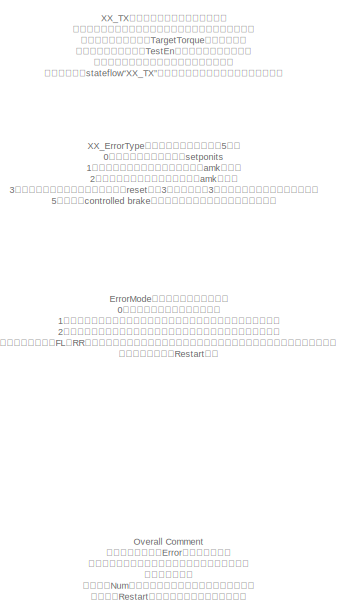
[diagram: root canvas - part 1/4, top left region]
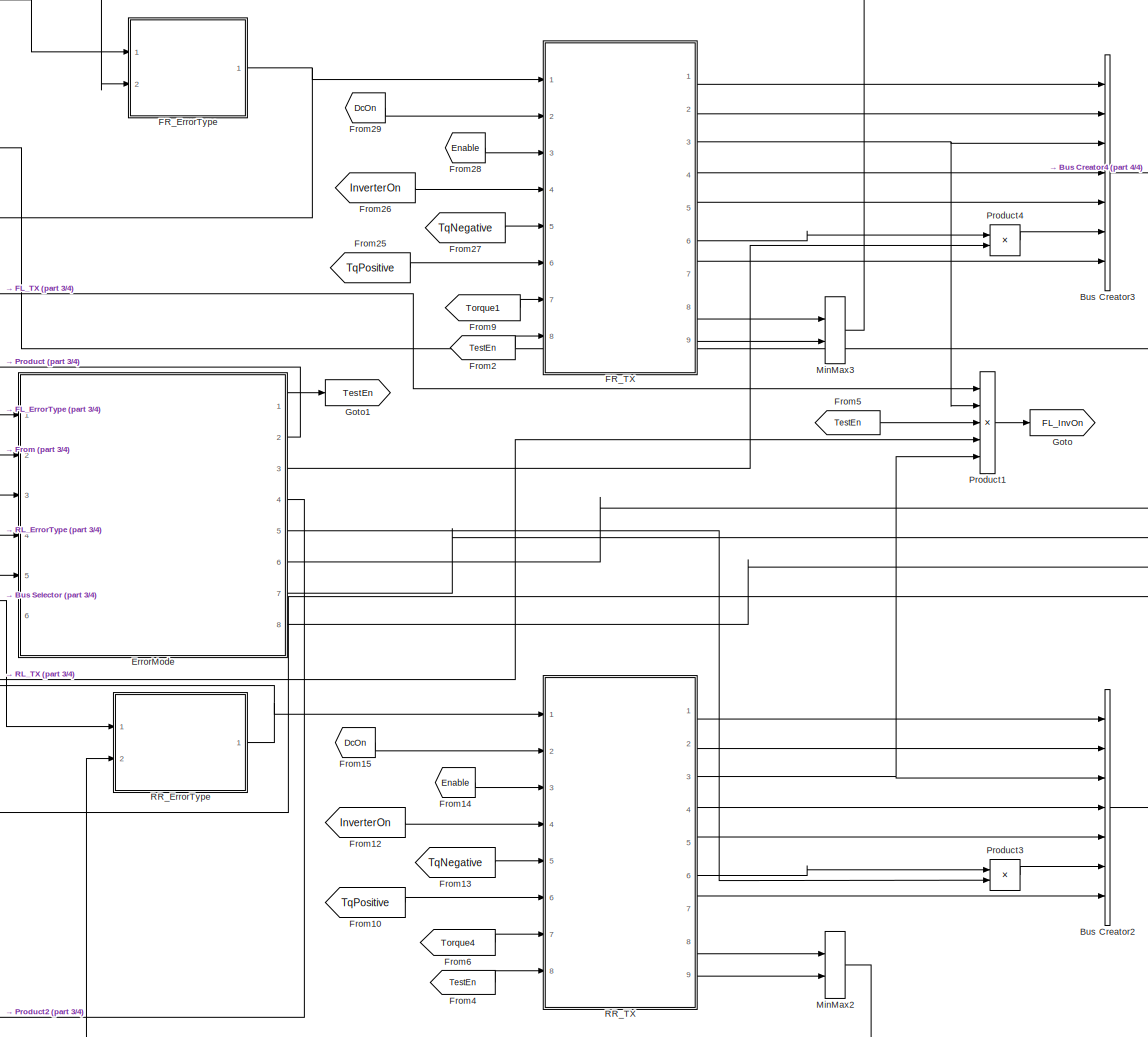
[diagram: root canvas - part 2/4, right side, full height]
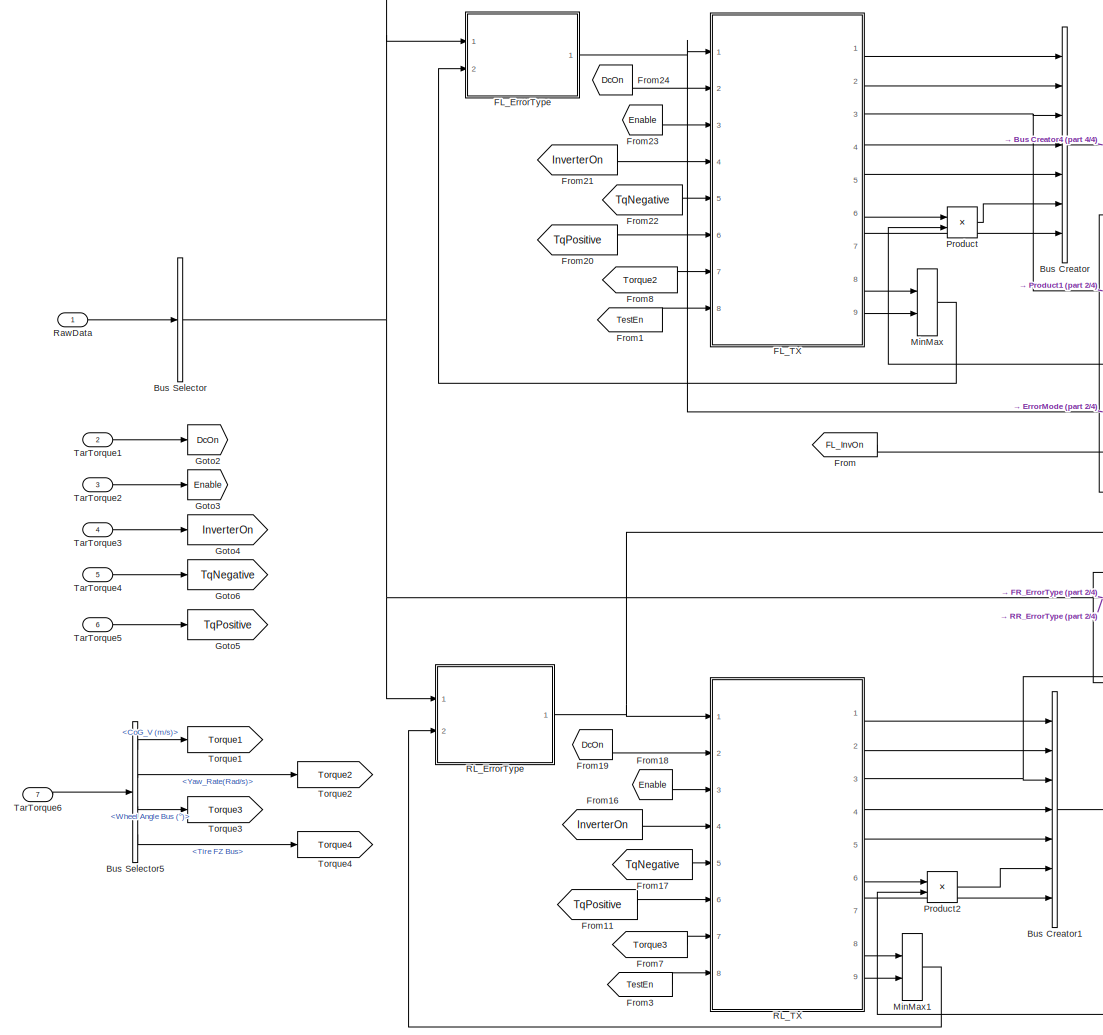
[diagram: root canvas - part 3/4, center side, full height]
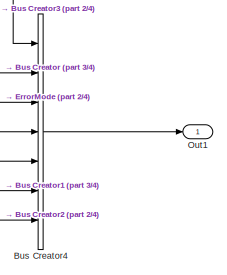
[diagram: root canvas - part 4/4, middle right region]
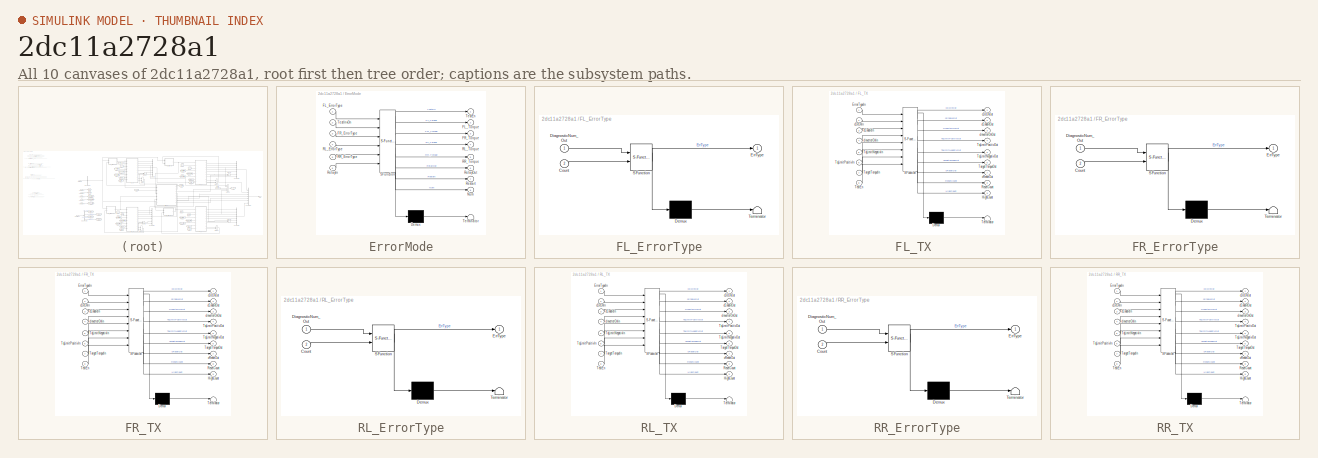
[diagram: thumbnail index - all 10 canvases of the model, root first then tree order]
MODEL slx_2dc11a2728a1
KIND model
CONFIG AbsTol = auto
CONFIG EnableMultiTasking = on
CONFIG FixedStep = auto
CONFIG MaxStep = auto
CONFIG MinStep = auto
CONFIG RelTol = 1e-3
CONFIG SampleTimeConstraint = Unconstrained
CONFIG Solver = VariableStepAuto
CONFIG SolverName = VariableStepAuto
CONFIG StartTime = 0.0
CONFIG StopTime = 10.0
BLOCK [BusCreator] Bus Creator
  DisplayOption = bar
  InheritFromInputs = on
  Inputs = 7
  Ports = [7, 1]
BLOCK [BusCreator] Bus Creator1
  DisplayOption = bar
  InheritFromInputs = on
  Inputs = 7
  Ports = [7, 1]
BLOCK [BusCreator] Bus Creator2
  DisplayOption = bar
  InheritFromInputs = on
  Inputs = 7
  Ports = [7, 1]
BLOCK [BusCreator] Bus Creator3
  DisplayOption = bar
  InheritFromInputs = on
  Inputs = 7
  Ports = [7, 1]
BLOCK [BusCreator] Bus Creator4
  DisplayOption = bar
  InheritFromInputs = on
  Inputs = 7
  Ports = [7, 1]
BLOCK [BusSelector] Bus Selector
  OutputAsBus = on
  OutputSignals = signal1,signal2
  Ports = [1, 1]
BLOCK [BusSelector] Bus Selector5
  OutputSignals = processed data.CoG_V (m/s),processed data.Yaw_Rate(Rad/s),processed data.Wheel  Angle Bus (°),processed data.Tire FZ Bus
  Ports = [1, 4]
BLOCK [SubSystem] ErrorMode
  ErrorFcn = Stateflow.Translate.translate
  PermitHierarchicalResolution = ExplicitOnly
  Ports = [6, 8]
  RequestExecContextInheritance = off
  SFBlockType = Chart
  TreatAsAtomicUnit = on
BLOCK [Demux] ErrorMode/ Demux 
  Outputs = 1
  Ports = [1, 1]
BLOCK [S-Function] ErrorMode/ SFunction 
  EnableBusSupport = off
  FunctionName = sf_sfun
  PortCounts = [6 9]
  Ports = [6, 9]
  SFcnIsStateOwnerBlock = off
  SFunctionDeploymentMode = off
  Tag = Stateflow S-Function 20
BLOCK [Terminator] ErrorMode/ Terminator 
BLOCK [Inport] ErrorMode/FL_ErrorType
BLOCK [Outport] ErrorMode/FL_Torque
  Port = 2
BLOCK [Inport] ErrorMode/FR_ErrorType
  Port = 3
BLOCK [Outport] ErrorMode/FR_Torque
  Port = 3
BLOCK [Outport] ErrorMode/Num
  Port = 8
BLOCK [Inport] ErrorMode/RL_ErrorType
  Port = 4
BLOCK [Outport] ErrorMode/RL_Torque
  Port = 4
BLOCK [Inport] ErrorMode/RR_ErrorType
  Port = 5
BLOCK [Outport] ErrorMode/RR_Torque
  Port = 5
BLOCK [Inport] ErrorMode/RelayIn
  Port = 6
BLOCK [Outport] ErrorMode/RelayOut
  Port = 6
BLOCK [Outport] ErrorMode/Restart
  Port = 7
BLOCK [Outport] ErrorMode/TestEn
BLOCK [Inport] ErrorMode/TestInvOn
  Port = 2
BLOCK [SubSystem] FL_ErrorType
  ErrorFcn = Stateflow.Translate.translate
  PermitHierarchicalResolution = ExplicitOnly
  Ports = [2, 1]
  RequestExecContextInheritance = off
  SFBlockType = MATLAB Function
  TreatAsAtomicUnit = on
BLOCK [Demux] FL_ErrorType/ Demux 
  Outputs = 1
  Ports = [1, 1]
BLOCK [S-Function] FL_ErrorType/ SFunction 
  EnableBusSupport = off
  FunctionName = sf_sfun
  PortCounts = [2 2]
  Ports = [2, 2]
  SFcnIsStateOwnerBlock = off
  SFunctionDeploymentMode = off
  Tag = Stateflow S-Function 18
BLOCK [Terminator] FL_ErrorType/ Terminator 
BLOCK [Inport] FL_ErrorType/Count
  Port = 2
BLOCK [Inport] FL_ErrorType/DiagnosticNum_Out
BLOCK [Outport] FL_ErrorType/ErrType
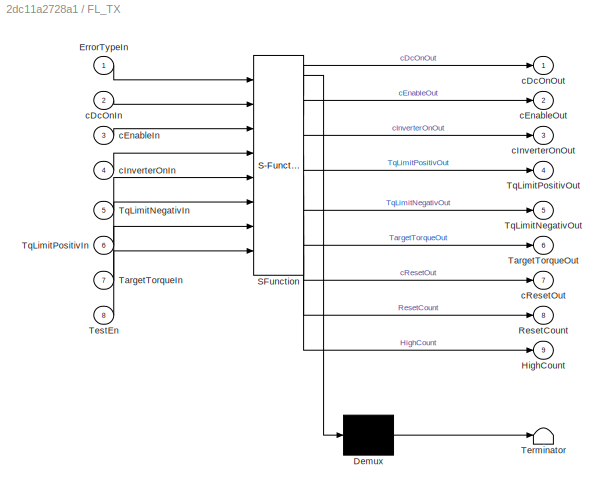
BLOCK [SubSystem] FL_TX 
  ErrorFcn = Stateflow.Translate.translate
  PermitHierarchicalResolution = ExplicitOnly
  Ports = [8, 9]
  RequestExecContextInheritance = off
  SFBlockType = Chart
  TreatAsAtomicUnit = on
BLOCK [Demux] FL_TX / Demux 
  Outputs = 1
  Ports = [1, 1]
BLOCK [S-Function] FL_TX / SFunction 
  EnableBusSupport = off
  FunctionName = sf_sfun
  PortCounts = [8 10]
  Ports = [8, 10]
  SFcnIsStateOwnerBlock = off
  SFunctionDeploymentMode = off
  Tag = Stateflow S-Function 1
BLOCK [Terminator] FL_TX / Terminator 
BLOCK [Inport] FL_TX /ErrorTypeIn
BLOCK [Outport] FL_TX /HighCount
  Port = 9
BLOCK [Outport] FL_TX /ResetCount
  Port = 8
BLOCK [Inport] FL_TX /TargetTorqueIn
  Port = 7
BLOCK [Outport] FL_TX /TargetTorqueOut
  Port = 6
BLOCK [Inport] FL_TX /TestEn
  Port = 8
BLOCK [Inport] FL_TX /TqLimitNegativIn
  Port = 5
BLOCK [Outport] FL_TX /TqLimitNegativOut
  Port = 5
BLOCK [Inport] FL_TX /TqLimitPositivIn
  Port = 6
BLOCK [Outport] FL_TX /TqLimitPositivOut
  Port = 4
BLOCK [Inport] FL_TX /cDcOnIn
  Port = 2
BLOCK [Outport] FL_TX /cDcOnOut
BLOCK [Inport] FL_TX /cEnableIn
  Port = 3
BLOCK [Outport] FL_TX /cEnableOut
  Port = 2
BLOCK [Inport] FL_TX /cInverterOnIn
  Port = 4
BLOCK [Outport] FL_TX /cInverterOnOut
  Port = 3
BLOCK [Outport] FL_TX /cResetOut
  Port = 7
BLOCK [SubSystem] FR_ErrorType
  ErrorFcn = Stateflow.Translate.translate
  PermitHierarchicalResolution = ExplicitOnly
  Ports = [2, 1]
  RequestExecContextInheritance = off
  SFBlockType = MATLAB Function
  TreatAsAtomicUnit = on
BLOCK [Demux] FR_ErrorType/ Demux 
  Outputs = 1
  Ports = [1, 1]
BLOCK [S-Function] FR_ErrorType/ SFunction 
  EnableBusSupport = off
  FunctionName = sf_sfun
  PortCounts = [2 2]
  Ports = [2, 2]
  SFcnIsStateOwnerBlock = off
  SFunctionDeploymentMode = off
  Tag = Stateflow S-Function 7
BLOCK [Terminator] FR_ErrorType/ Terminator 
BLOCK [Inport] FR_ErrorType/Count
  Port = 2
BLOCK [Inport] FR_ErrorType/DiagnosticNum_Out
BLOCK [Outport] FR_ErrorType/ErrType
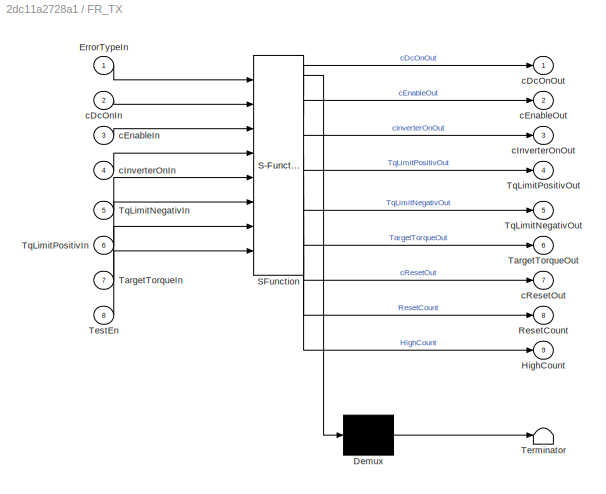
BLOCK [SubSystem] FR_TX
  ErrorFcn = Stateflow.Translate.translate
  PermitHierarchicalResolution = ExplicitOnly
  Ports = [8, 9]
  RequestExecContextInheritance = off
  SFBlockType = Chart
  TreatAsAtomicUnit = on
BLOCK [Demux] FR_TX/ Demux 
  Outputs = 1
  Ports = [1, 1]
BLOCK [S-Function] FR_TX/ SFunction 
  EnableBusSupport = off
  FunctionName = sf_sfun
  PortCounts = [8 10]
  Ports = [8, 10]
  SFcnIsStateOwnerBlock = off
  SFunctionDeploymentMode = off
  Tag = Stateflow S-Function 6
BLOCK [Terminator] FR_TX/ Terminator 
BLOCK [Inport] FR_TX/ErrorTypeIn
BLOCK [Outport] FR_TX/HighCount
  Port = 9
BLOCK [Outport] FR_TX/ResetCount
  Port = 8
BLOCK [Inport] FR_TX/TargetTorqueIn
  Port = 7
BLOCK [Outport] FR_TX/TargetTorqueOut
  Port = 6
BLOCK [Inport] FR_TX/TestEn
  Port = 8
BLOCK [Inport] FR_TX/TqLimitNegativIn
  Port = 5
BLOCK [Outport] FR_TX/TqLimitNegativOut
  Port = 5
BLOCK [Inport] FR_TX/TqLimitPositivIn
  Port = 6
BLOCK [Outport] FR_TX/TqLimitPositivOut
  Port = 4
BLOCK [Inport] FR_TX/cDcOnIn
  Port = 2
BLOCK [Outport] FR_TX/cDcOnOut
BLOCK [Inport] FR_TX/cEnableIn
  Port = 3
BLOCK [Outport] FR_TX/cEnableOut
  Port = 2
BLOCK [Inport] FR_TX/cInverterOnIn
  Port = 4
BLOCK [Outport] FR_TX/cInverterOnOut
  Port = 3
BLOCK [Outport] FR_TX/cResetOut
  Port = 7
BLOCK [From] From
  GotoTag = FL_InvOn
BLOCK [From] From1
  GotoTag = TestEn
BLOCK [From] From10
  GotoTag = TqPositive
BLOCK [From] From11
  GotoTag = TqPositive
BLOCK [From] From12
  GotoTag = InverterOn
BLOCK [From] From13
  GotoTag = TqNegative
BLOCK [From] From14
  GotoTag = Enable
BLOCK [From] From15
  GotoTag = DcOn
BLOCK [From] From16
  GotoTag = InverterOn
BLOCK [From] From17
  GotoTag = TqNegative
BLOCK [From] From18
  GotoTag = Enable
BLOCK [From] From19
  GotoTag = DcOn
BLOCK [From] From2
  GotoTag = TestEn
BLOCK [From] From20
  GotoTag = TqPositive
BLOCK [From] From21
  GotoTag = InverterOn
BLOCK [From] From22
  GotoTag = TqNegative
BLOCK [From] From23
  GotoTag = Enable
BLOCK [From] From24
  GotoTag = DcOn
BLOCK [From] From25
  GotoTag = TqPositive
BLOCK [From] From26
  GotoTag = InverterOn
BLOCK [From] From27
  GotoTag = TqNegative
BLOCK [From] From28
  GotoTag = Enable
BLOCK [From] From29
  GotoTag = DcOn
BLOCK [From] From3
  GotoTag = TestEn
BLOCK [From] From4
  GotoTag = TestEn
BLOCK [From] From5
  GotoTag = TestEn
BLOCK [From] From6
  GotoTag = Torque4
BLOCK [From] From7
  GotoTag = Torque3
BLOCK [From] From8
  GotoTag = Torque2
BLOCK [From] From9
  GotoTag = Torque1
BLOCK [Goto] Goto
  GotoTag = FL_InvOn
BLOCK [Goto] Goto1
  GotoTag = TestEn
BLOCK [Goto] Goto2
  GotoTag = DcOn
BLOCK [Goto] Goto3
  GotoTag = Enable
BLOCK [Goto] Goto4
  GotoTag = InverterOn
BLOCK [Goto] Goto5
  GotoTag = TqPositive
BLOCK [Goto] Goto6
  GotoTag = TqNegative
BLOCK [MinMax] MinMax
  Function = max
  Inputs = 2
  Ports = [2, 1]
BLOCK [MinMax] MinMax1
  Function = max
  Inputs = 2
  Ports = [2, 1]
BLOCK [MinMax] MinMax2
  Function = max
  Inputs = 2
  Ports = [2, 1]
BLOCK [MinMax] MinMax3
  Function = max
  Inputs = 2
  Ports = [2, 1]
BLOCK [Outport] Out1
BLOCK [Product] Product
  Ports = [2, 1]
BLOCK [Product] Product1
  Inputs = 5
  Ports = [5, 1]
BLOCK [Product] Product2
  Ports = [2, 1]
BLOCK [Product] Product3
  Ports = [2, 1]
BLOCK [Product] Product4
  Ports = [2, 1]
BLOCK [SubSystem] RL_ErrorType
  ErrorFcn = Stateflow.Translate.translate
  PermitHierarchicalResolution = ExplicitOnly
  Ports = [2, 1]
  RequestExecContextInheritance = off
  SFBlockType = MATLAB Function
  TreatAsAtomicUnit = on
BLOCK [Demux] RL_ErrorType/ Demux 
  Outputs = 1
  Ports = [1, 1]
BLOCK [S-Function] RL_ErrorType/ SFunction 
  EnableBusSupport = off
  FunctionName = sf_sfun
  PortCounts = [2 2]
  Ports = [2, 2]
  SFcnIsStateOwnerBlock = off
  SFunctionDeploymentMode = off
  Tag = Stateflow S-Function 3
BLOCK [Terminator] RL_ErrorType/ Terminator 
BLOCK [Inport] RL_ErrorType/Count
  Port = 2
BLOCK [Inport] RL_ErrorType/DiagnosticNum_Out
BLOCK [Outport] RL_ErrorType/ErrType
BLOCK [SubSystem] RL_TX
  ErrorFcn = Stateflow.Translate.translate
  PermitHierarchicalResolution = ExplicitOnly
  Ports = [8, 9]
  RequestExecContextInheritance = off
  SFBlockType = Chart
  TreatAsAtomicUnit = on
BLOCK [Demux] RL_TX/ Demux 
  Outputs = 1
  Ports = [1, 1]
BLOCK [S-Function] RL_TX/ SFunction 
  EnableBusSupport = off
  FunctionName = sf_sfun
  PortCounts = [8 10]
  Ports = [8, 10]
  SFcnIsStateOwnerBlock = off
  SFunctionDeploymentMode = off
  Tag = Stateflow S-Function 2
BLOCK [Terminator] RL_TX/ Terminator 
BLOCK [Inport] RL_TX/ErrorTypeIn
BLOCK [Outport] RL_TX/HighCount
  Port = 9
BLOCK [Outport] RL_TX/ResetCount
  Port = 8
BLOCK [Inport] RL_TX/TargetTorqueIn
  Port = 7
BLOCK [Outport] RL_TX/TargetTorqueOut
  Port = 6
BLOCK [Inport] RL_TX/TestEn
  Port = 8
BLOCK [Inport] RL_TX/TqLimitNegativIn
  Port = 5
BLOCK [Outport] RL_TX/TqLimitNegativOut
  Port = 5
BLOCK [Inport] RL_TX/TqLimitPositivIn
  Port = 6
BLOCK [Outport] RL_TX/TqLimitPositivOut
  Port = 4
BLOCK [Inport] RL_TX/cDcOnIn
  Port = 2
BLOCK [Outport] RL_TX/cDcOnOut
BLOCK [Inport] RL_TX/cEnableIn
  Port = 3
BLOCK [Outport] RL_TX/cEnableOut
  Port = 2
BLOCK [Inport] RL_TX/cInverterOnIn
  Port = 4
BLOCK [Outport] RL_TX/cInverterOnOut
  Port = 3
BLOCK [Outport] RL_TX/cResetOut
  Port = 7
BLOCK [SubSystem] RR_ErrorType
  ErrorFcn = Stateflow.Translate.translate
  PermitHierarchicalResolution = ExplicitOnly
  Ports = [2, 1]
  RequestExecContextInheritance = off
  SFBlockType = MATLAB Function
  TreatAsAtomicUnit = on
BLOCK [Demux] RR_ErrorType/ Demux 
  Outputs = 1
  Ports = [1, 1]
BLOCK [S-Function] RR_ErrorType/ SFunction 
  EnableBusSupport = off
  FunctionName = sf_sfun
  PortCounts = [2 2]
  Ports = [2, 2]
  SFcnIsStateOwnerBlock = off
  SFunctionDeploymentMode = off
  Tag = Stateflow S-Function 5
BLOCK [Terminator] RR_ErrorType/ Terminator 
BLOCK [Inport] RR_ErrorType/Count
  Port = 2
BLOCK [Inport] RR_ErrorType/DiagnosticNum_Out
BLOCK [Outport] RR_ErrorType/ErrType
BLOCK [SubSystem] RR_TX
  ErrorFcn = Stateflow.Translate.translate
  PermitHierarchicalResolution = ExplicitOnly
  Ports = [8, 9]
  RequestExecContextInheritance = off
  SFBlockType = Chart
  TreatAsAtomicUnit = on
BLOCK [Demux] RR_TX/ Demux 
  Outputs = 1
  Ports = [1, 1]
BLOCK [S-Function] RR_TX/ SFunction 
  EnableBusSupport = off
  FunctionName = sf_sfun
  PortCounts = [8 10]
  Ports = [8, 10]
  SFcnIsStateOwnerBlock = off
  SFunctionDeploymentMode = off
  Tag = Stateflow S-Function 4
BLOCK [Terminator] RR_TX/ Terminator 
BLOCK [Inport] RR_TX/ErrorTypeIn
BLOCK [Outport] RR_TX/HighCount
  Port = 9
BLOCK [Outport] RR_TX/ResetCount
  Port = 8
BLOCK [Inport] RR_TX/TargetTorqueIn
  Port = 7
BLOCK [Outport] RR_TX/TargetTorqueOut
  Port = 6
BLOCK [Inport] RR_TX/TestEn
  Port = 8
BLOCK [Inport] RR_TX/TqLimitNegativIn
  Port = 5
BLOCK [Outport] RR_TX/TqLimitNegativOut
  Port = 5
BLOCK [Inport] RR_TX/TqLimitPositivIn
  Port = 6
BLOCK [Outport] RR_TX/TqLimitPositivOut
  Port = 4
BLOCK [Inport] RR_TX/cDcOnIn
  Port = 2
BLOCK [Outport] RR_TX/cDcOnOut
BLOCK [Inport] RR_TX/cEnableIn
  Port = 3
BLOCK [Outport] RR_TX/cEnableOut
  Port = 2
BLOCK [Inport] RR_TX/cInverterOnIn
  Port = 4
BLOCK [Outport] RR_TX/cInverterOnOut
  Port = 3
BLOCK [Outport] RR_TX/cResetOut
  Port = 7
BLOCK [Inport] RawData
BLOCK [Inport] TarTorque1
  Port = 2
BLOCK [Inport] TarTorque2
  Port = 3
BLOCK [Inport] TarTorque3
  Port = 4
BLOCK [Inport] TarTorque4
  Port = 5
BLOCK [Inport] TarTorque5
  Port = 6
BLOCK [Inport] TarTorque6
  Port = 7
BLOCK [Goto] Torque1
  GotoTag = Torque1
BLOCK [Goto] Torque2
  GotoTag = Torque2
BLOCK [Goto] Torque3
  GotoTag = Torque3
BLOCK [Goto] Torque4
  GotoTag = Torque4
ANNOTATION (root): ErrorMode ：用于判断错误的模式： 0：正常，所有电机信号正常发送 1：后驱，前电机有一个有错误则切断前电机输出，并反馈动态控制程序 2：前驱，后电机有一个有错误则切断后电机输出，并反馈动态控制程序 3：重启，有三个或对角（FL与RR）有错误则切断所有电机输出，控制电机控制器供电继电器进行重启，并反馈动态控制程序 进入重启状态会使Restart置一 控制继电器有输出RelayOut和继电器状态反馈RelayIn，以物理状态进行表示（0通电1断开） 电机控制器重新上电后，TestEn置一，控制TX模块进行电机上电 4：失能，重启次数超过3次仍不能解除错误状态，则停止重启的状态，并反馈动态控制程序 会根据所在模式，切断TargetTorque信号 其判断由stateflow“ErrorMode”进行，分别对四个电机进行上下电操作。
ANNOTATION (root): XX_ErrorType ：定义错误类型，并分为5档： 0：正常，不会阻隔电机的setponits 1：通过重新使能可能被消除的错误（amk定义） 2：需要重启才可能被消除的错误（amk定义） 3：无法重新使能的错误，包含低压时reset超过3次或使能超过3次仍不能消除的错误（个人定义） 5：会导致controlled brake的错误，因为会导致停车，所以单独列出 其判断由四个matlab Fcn“XX_ErrorType”进行，分别对四个电机的状态进行判断。
ANNOTATION (root): XX_TX ：用于执行电机的下点与上电： 分为正常与上电两个模块，根据是否有错误进入上下电模块 一旦进入上下电模块，TargetTorque信号将被阻断 在上下电模块中，根据TestEn使能信号，进行上电操作 返回不能消除错误的次数，用于错误类型判断 其判断由四个stateflow“XX_TX”进行，分别对四个电机进行上下电操作。
ANNOTATION (root): Overall Comment 模块根据四个电机Error的类型判断状态 在整车上电之后为各个电机进行重新上电以及重启。 模块返回信号： 错误状态Num：对应正常、前驱、后驱、重启、失能； 重启状态Restart：表明正在进行电机控制器重启 电机控制器供电继电器RelayOut：控制闭合（1通电0断开），并需要实际状态RelayIn确认已重启 *其他地方的ErrorHandling应该不需要了 *各个模块详细的注释见另外三个Annotation，与模块forground颜色一致 *每个模块内也有更详细的备注 *很多错误没有出现过，也没看懂到底怎么解决，所以归类方式以结果为主，并没有更深入的进行handling *其实很多错误根本无法在行驶中被消除，但是垂死挣扎，此程序主要意义还是切换前驱后驱 2020/2/6 V2.0
LINE Bus Creator1:1 -> Bus Creator4:6
LINE Bus Creator2:1 -> Bus Creator4:7
LINE Bus Creator3:1 -> Bus Creator4:1
LINE Bus Creator4:1 -> Out1:1
LINE Bus Creator:1 -> Bus Creator4:2
LINE Bus Selector5:1 -> Torque1:1
LINE Bus Selector5:2 -> Torque2:1
LINE Bus Selector5:3 -> Torque3:1
LINE Bus Selector5:4 -> Torque4:1
NET Bus Selector:1 -> FL_ErrorType:1, FR_ErrorType:1, RL_ErrorType:1, RR_ErrorType:1
LINE ErrorMode:1 -> Goto1:1
LINE ErrorMode:2 -> Product:2
LINE ErrorMode:3 -> Product4:2
LINE ErrorMode:4 -> Product2:2
LINE ErrorMode:5 -> Product3:2
LINE ErrorMode:6 -> Bus Creator4:3
LINE ErrorMode:7 -> Bus Creator4:4
LINE ErrorMode:8 -> Bus Creator4:5
NET FL_ErrorType:1 -> ErrorMode:1, FL_TX :1
LINE FL_TX :1 -> Bus Creator:1
LINE FL_TX :2 -> Bus Creator:2
NET FL_TX :3 -> Bus Creator:3, Product1:1
LINE FL_TX :4 -> Bus Creator:4
LINE FL_TX :5 -> Bus Creator:5
LINE FL_TX :6 -> Product:1
LINE FL_TX :7 -> Bus Creator:7
LINE FL_TX :8 -> MinMax:1
LINE FL_TX :9 -> MinMax:2
NET FR_ErrorType:1 -> ErrorMode:3, FR_TX:1
LINE FR_TX:1 -> Bus Creator3:1
LINE FR_TX:2 -> Bus Creator3:2
NET FR_TX:3 -> Bus Creator3:3, Product1:2
LINE FR_TX:4 -> Bus Creator3:4
LINE FR_TX:5 -> Bus Creator3:5
LINE FR_TX:6 -> Product4:1
LINE FR_TX:7 -> Bus Creator3:7
LINE FR_TX:8 -> MinMax3:1
LINE FR_TX:9 -> MinMax3:2
LINE From10:1 -> RR_TX:6
LINE From11:1 -> RL_TX:6
LINE From12:1 -> RR_TX:4
LINE From13:1 -> RR_TX:5
LINE From14:1 -> RR_TX:3
LINE From15:1 -> RR_TX:2
LINE From16:1 -> RL_TX:4
LINE From17:1 -> RL_TX:5
LINE From18:1 -> RL_TX:3
LINE From19:1 -> RL_TX:2
LINE From1:1 -> FL_TX :8
LINE From20:1 -> FL_TX :6
LINE From21:1 -> FL_TX :4
LINE From22:1 -> FL_TX :5
LINE From23:1 -> FL_TX :3
LINE From24:1 -> FL_TX :2
LINE From25:1 -> FR_TX:6
LINE From26:1 -> FR_TX:4
LINE From27:1 -> FR_TX:5
LINE From28:1 -> FR_TX:3
LINE From29:1 -> FR_TX:2
LINE From2:1 -> FR_TX:8
LINE From3:1 -> RL_TX:8
LINE From4:1 -> RR_TX:8
LINE From5:1 -> Product1:3
LINE From6:1 -> RR_TX:7
LINE From7:1 -> RL_TX:7
LINE From8:1 -> FL_TX :7
LINE From9:1 -> FR_TX:7
LINE From:1 -> ErrorMode:2
LINE MinMax1:1 -> RL_ErrorType:2
LINE MinMax2:1 -> RR_ErrorType:2
LINE MinMax3:1 -> FR_ErrorType:2
LINE MinMax:1 -> FL_ErrorType:2
LINE Product1:1 -> Goto:1
LINE Product2:1 -> Bus Creator1:6
LINE Product3:1 -> Bus Creator2:6
LINE Product4:1 -> Bus Creator3:6
LINE Product:1 -> Bus Creator:6
NET RL_ErrorType:1 -> ErrorMode:4, RL_TX:1
LINE RL_TX:1 -> Bus Creator1:1
LINE RL_TX:2 -> Bus Creator1:2
NET RL_TX:3 -> Bus Creator1:3, Product1:4
LINE RL_TX:4 -> Bus Creator1:4
LINE RL_TX:5 -> Bus Creator1:5
LINE RL_TX:6 -> Product2:1
LINE RL_TX:7 -> Bus Creator1:7
LINE RL_TX:8 -> MinMax1:1
LINE RL_TX:9 -> MinMax1:2
NET RR_ErrorType:1 -> ErrorMode:5, RR_TX:1
LINE RR_TX:1 -> Bus Creator2:1
LINE RR_TX:2 -> Bus Creator2:2
NET RR_TX:3 -> Bus Creator2:3, Product1:5
LINE RR_TX:4 -> Bus Creator2:4
LINE RR_TX:5 -> Bus Creator2:5
LINE RR_TX:6 -> Product3:1
LINE RR_TX:7 -> Bus Creator2:7
LINE RR_TX:8 -> MinMax2:1
LINE RR_TX:9 -> MinMax2:2
LINE RawData:1 -> Bus Selector:1
LINE TarTorque1:1 -> Goto2:1
LINE TarTorque2:1 -> Goto3:1
LINE TarTorque3:1 -> Goto4:1
LINE TarTorque4:1 -> Goto6:1
LINE TarTorque5:1 -> Goto5:1
LINE TarTorque6:1 -> Bus Selector5:1
note: NET lines group one-source signal fan-out (src -> all destinations, sorted); 1:1 wires keep LINE
CHART RL_TX states=12 transitions=18
  STATE_LABEL 'E1'
  STATE_LABEL 'S1\nen:\nTargetTorqueOut=0;\nTqLimitNegativOut=0;\nTqLimitPositivOut=0;\nn=0;\ndu:\nn=n+1;\n'
  STATE_LABEL 'S8\nen:\ncInverterOn=1;\nn=0;\ndu:\nn=n+1;'
  STATE_LABEL 'S2\nen:\ncInverterOnOut=0;\nn=0;\ndu:\nn=n+1;'
  STATE_LABEL 'S7\nen:\ncEnableOut=1;\nn=0;\ndu:\nn=n+1;'
  STATE_LABEL 'S3\nen:\ncEnableOut=0;\nn=0;\ndu:\nn=n+1;'
  STATE_LABEL 'S6\nen:\ncDcOnOut=1;\nn=0;\ndu:\nn=n+1;'
  STATE_LABEL 'S4\nen:\ncDcOnOut=0;\nn=0;\ndu:\nn=n+1;\n'
  STATE_LABEL 'S5\nen:\ncReset=1;\nn=0;\ndu:\nn=n+1;\nex:\ncReset=0;'
  STATE_LABEL 'HighCoun[ErrorTypeIn~=0]{HighCount = HighCount + 1;}'
  STATE_LABEL '[n>10]'
  STATE_LABEL '[n>5]'
  STATE_LABEL '[n>5]'
  STATE_LABEL '[n>5]'
  STATE_LABEL '[n>5]'
  STATE_LABEL '[TestEn==1]...\n{HighCount=0;ResetCount=0;}'
  STATE_LABEL '[n>5]'
  STATE_LABEL '[ErrorTypeIn~=1]{ResetCount=0;}'
  STATE_LABEL 'ResetCoun[ErrorTypeIn==1&ResetCount<4]{ResetCount = ResetCount + 1;}'
  STATE_LABEL '[ResetCount==4]'
  STATE_LABEL '[n>10]'
  STATE_LABEL '[n>5]'
  STATE_LABEL 'S1\nen:\nTargetTorqueOut=0;\nTqLimitNegativOut=0;\nTqLimitPositivOut=0;\nn=0;\ndu:\nn=n+1;\n'
  STATE_LABEL 'S8\nen:\ncInverterOn=1;\nn=0;\ndu:\nn=n+1;'
  STATE_LABEL 'S2\nen:\ncInverterOnOut=0;\nn=0;\ndu:\nn=n+1;'
  STATE_LABEL 'S7\nen:\ncEnableOut=1;\nn=0;\ndu:\nn=n+1;'
  STATE_LABEL 'S3\nen:\ncEnableOut=0;\nn=0;\ndu:\nn=n+1;'
  STATE_LABEL 'S6\nen:\ncDcOnOut=1;\nn=0;\ndu:\nn=n+1;'
  STATE_LABEL 'S4\nen:\ncDcOnOut=0;\nn=0;\ndu:\nn=n+1;\n'
  STATE_LABEL 'S5\nen:\ncReset=1;\nn=0;\ndu:\nn=n+1;\nex:\ncReset=0;'
  STATE_LABEL 'E0\nen:\nErrorState=ErrorTypeIn;\nResetCount=0;\nHighCount=0;\ndu:\ncDcOnOut=cDcOnIn;\ncEnableOut=cEnableIn;\ncInverterOnOut=cInverterOnIn;\nTqLimitPositivOut=TqLimitPositivIn;\nTqLimitNegativOut=TqLimitNegativIn;\nTargetTorqueOut=TargetTorqueIn;\nex:\nErrorState=ErrorTypeIn;'  <repeated x4 — deduplicated; at blocks: RL_TX, RR_TX, FR_TX, FL_TX>
  STATE_LABEL '<!DOCTYPE HTML PUBLIC "-//W3C//DTD HTML 4.0//EN" "http://www.w3.org/TR/REC-html40/strict.dtd">\n<html><head><meta name="qrichtext" content="1" /><style type="text/css">\np, li { white-space: pre-wrap; }\n</style></head><body style=" font-family:\'Helvetica\'; font-size:12px; font-weight:400; font-style:normal;">\n<p style=" margin-top:0px; margin-bottom:0px; margin-left:0px; margin-right:0px; -qt-block-...<+1717ch>'  <repeated x3 — deduplicated; at blocks: RL_TX, RR_TX, FR_TX>
  STATE_LABEL '<!DOCTYPE HTML PUBLIC "-//W3C//DTD HTML 4.0//EN" "http://www.w3.org/TR/REC-html40/strict.dtd">\n<html><head><meta name="qrichtext" content="1" /><style type="text/css">\np, li { white-space: pre-wrap; }\n</style></head><body style=" font-family:\'Helvetica\'; font-size:12px; font-weight:400; font-style:normal;">\n<p style="-qt-paragraph-type:empty; margin-top:0px; margin-bottom:0px; margin-left:0px; mar...<+77ch>'  <repeated x4 — deduplicated; at blocks: RL_TX, RR_TX, FR_TX, FL_TX>
CHART RL_ErrorType states=1 transitions=1
  STATE_LABEL 'eML_blk_kernel()'
  STATE_LABEL 'SCRIPT:\nfunction ErrType = ErrorType(DiagnosticNum_Out,Count)\n    if DiagnosticNum_Out==0&&Count<4\n        ErrType=0;%没有错误\n    elseif (DiagnosticNum_Out==3587 || DiagnosticNum_Out==3585 ...\n            ||MCFL_Diagnost==2310)&&Count<4\n        ErrType=2;%错误需要软件重启\n    elseif (DiagnosticNum_Out==1049 || DiagnosticNum_Out==1066 ...\n            ||DiagnosticNum_Out==1101|| DiagnosticNum_Out==2360 ...\n   ...<+678ch>'  <repeated x3 — deduplicated; at blocks: RL_ErrorType, RR_ErrorType, FL_ErrorType>
CHART RR_TX states=12 transitions=18
  STATE_LABEL 'E1'
  STATE_LABEL 'S1\nen:\nTargetTorqueOut=0;\nTqLimitNegativOut=0;\nTqLimitPositivOut=0;\nn=0;\ndu:\nn=n+1;\n'
  STATE_LABEL 'S8\nen:\ncInverterOn=1;\nn=0;\ndu:\nn=n+1;'
  STATE_LABEL 'S2\nen:\ncInverterOnOut=0;\nn=0;\ndu:\nn=n+1;'
  STATE_LABEL 'S7\nen:\ncEnableOut=1;\nn=0;\ndu:\nn=n+1;'
  STATE_LABEL 'S3\nen:\ncEnableOut=0;\nn=0;\ndu:\nn=n+1;'
  STATE_LABEL 'S6\nen:\ncDcOnOut=1;\nn=0;\ndu:\nn=n+1;'
  STATE_LABEL 'S4\nen:\ncDcOnOut=0;\nn=0;\ndu:\nn=n+1;\n'
  STATE_LABEL 'S5\nen:\ncReset=1;\nn=0;\ndu:\nn=n+1;\nex:\ncReset=0;'
  STATE_LABEL 'HighCoun[ErrorTypeIn~=0]{HighCount = HighCount + 1;}'
  STATE_LABEL '[n>10]'
  STATE_LABEL '[n>5]'
  STATE_LABEL '[n>5]'
  STATE_LABEL '[n>5]'
  STATE_LABEL '[n>5]'
  STATE_LABEL '[TestEn==1]...\n{HighCount=0;ResetCount=0;}'
  STATE_LABEL '[n>5]'
  STATE_LABEL '[ErrorTypeIn~=1]{ResetCount=0;}'
  STATE_LABEL 'ResetCoun[ErrorTypeIn==1&ResetCount<4]{ResetCount = ResetCount + 1;}'
  STATE_LABEL '[ResetCount==4]'
  STATE_LABEL '[n>10]'
  STATE_LABEL '[n>5]'
  STATE_LABEL 'S1\nen:\nTargetTorqueOut=0;\nTqLimitNegativOut=0;\nTqLimitPositivOut=0;\nn=0;\ndu:\nn=n+1;\n'
  STATE_LABEL 'S8\nen:\ncInverterOn=1;\nn=0;\ndu:\nn=n+1;'
  STATE_LABEL 'S2\nen:\ncInverterOnOut=0;\nn=0;\ndu:\nn=n+1;'
  STATE_LABEL 'S7\nen:\ncEnableOut=1;\nn=0;\ndu:\nn=n+1;'
  STATE_LABEL 'S3\nen:\ncEnableOut=0;\nn=0;\ndu:\nn=n+1;'
  STATE_LABEL 'S6\nen:\ncDcOnOut=1;\nn=0;\ndu:\nn=n+1;'
  STATE_LABEL 'S4\nen:\ncDcOnOut=0;\nn=0;\ndu:\nn=n+1;\n'
  STATE_LABEL 'S5\nen:\ncReset=1;\nn=0;\ndu:\nn=n+1;\nex:\ncReset=0;'
CHART RR_ErrorType states=1 transitions=1
  STATE_LABEL 'eML_blk_kernel()'
CHART FR_TX states=12 transitions=18
  STATE_LABEL 'E1'
  STATE_LABEL 'S1\nen:\nTargetTorqueOut=0;\nTqLimitNegativOut=0;\nTqLimitPositivOut=0;\nn=0;\ndu:\nn=n+1;\n'
  STATE_LABEL 'S8\nen:\ncInverterOn=1;\nn=0;\ndu:\nn=n+1;'
  STATE_LABEL 'S2\nen:\ncInverterOnOut=0;\nn=0;\ndu:\nn=n+1;'
  STATE_LABEL 'S7\nen:\ncEnableOut=1;\nn=0;\ndu:\nn=n+1;'
  STATE_LABEL 'S3\nen:\ncEnableOut=0;\nn=0;\ndu:\nn=n+1;'
  STATE_LABEL 'S6\nen:\ncDcOnOut=1;\nn=0;\ndu:\nn=n+1;'
  STATE_LABEL 'S4\nen:\ncDcOnOut=0;\nn=0;\ndu:\nn=n+1;\n'
  STATE_LABEL 'S5\nen:\ncReset=1;\nn=0;\ndu:\nn=n+1;\nex:\ncReset=0;'
  STATE_LABEL 'HighCoun[ErrorTypeIn~=0]{HighCount = HighCount + 1;}'
  STATE_LABEL '[n>10]'
  STATE_LABEL '[n>5]'
  STATE_LABEL '[n>5]'
  STATE_LABEL '[n>5]'
  STATE_LABEL '[n>5]'
  STATE_LABEL '[TestEn==1]...\n{HighCount=0;ResetCount=0;}'
  STATE_LABEL '[n>5]'
  STATE_LABEL '[ErrorTypeIn~=1]{ResetCount=0;}'
  STATE_LABEL 'ResetCoun[ErrorTypeIn==1&ResetCount<4]{ResetCount = ResetCount + 1;}'
  STATE_LABEL '[ResetCount==4]'
  STATE_LABEL '[n>10]'
  STATE_LABEL '[n>5]'
  STATE_LABEL 'S1\nen:\nTargetTorqueOut=0;\nTqLimitNegativOut=0;\nTqLimitPositivOut=0;\nn=0;\ndu:\nn=n+1;\n'
  STATE_LABEL 'S8\nen:\ncInverterOn=1;\nn=0;\ndu:\nn=n+1;'
  STATE_LABEL 'S2\nen:\ncInverterOnOut=0;\nn=0;\ndu:\nn=n+1;'
  STATE_LABEL 'S7\nen:\ncEnableOut=1;\nn=0;\ndu:\nn=n+1;'
  STATE_LABEL 'S3\nen:\ncEnableOut=0;\nn=0;\ndu:\nn=n+1;'
  STATE_LABEL 'S6\nen:\ncDcOnOut=1;\nn=0;\ndu:\nn=n+1;'
  STATE_LABEL 'S4\nen:\ncDcOnOut=0;\nn=0;\ndu:\nn=n+1;\n'
  STATE_LABEL 'S5\nen:\ncReset=1;\nn=0;\ndu:\nn=n+1;\nex:\ncReset=0;'
CHART FR_ErrorType states=1 transitions=1
  STATE_LABEL 'eML_blk_kernel()'
  STATE_LABEL 'SCRIPT:\nfunction ErrType = ErrorType(DiagnosticNum_Out,Count)\n     if DiagnosticNum_Out==0&&Count<4\n         ErrType=0;% no error\n     elseif (DiagnosticNum_Out==3587 || DiagnosticNum_Out==3585 ...\n             ||MCFL_Diagnost==2310)&&Count<4\n         ErrType=2;% error requires software restart\n     elseif (DiagnosticNum_Out==1049 || DiagnosticNum_Out==1066 ...\n             ||DiagnosticNum_Out==11...<+1522ch>'
CHART FL_ErrorType states=1 transitions=1
  STATE_LABEL 'eML_blk_kernel()'
CHART ErrorMode states=8 transitions=16
  STATE_LABEL 'Num'
  STATE_LABEL 'SCRIPT:\nfunction Num=Mode(FL_ErrorType,FR_ErrorType,RL_ErrorType,RR_ErrorType,RestartCount)\nif FL_ErrorType==0&&FR_ErrorType==0&&...\n        RL_ErrorType==0&&RR_ErrorType==0\n    Num=0;%正常\nelseif (FL_ErrorType==1||FR_ErrorType==1)&&...\n        RL_ErrorType==0&&RR_ErrorType==0\n    Num=1;%后驱\nelseif (RL_ErrorType==1||RR_ErrorType==1)&&...\n        FL_ErrorType==0&&FR_ErrorType==0\n    Num=2;%前驱\nelseif (...<+168ch>'
  STATE_LABEL 'Restart\n'
  STATE_LABEL 'S2\nen:\nTestEn=1;\nex:\nTestEn=0;\nRestart=0;'
  STATE_LABEL 'R1\nen:\nRelayOut=0;\nRestart=1；\nex:\nRelayOut=1;'
  STATE_LABEL 'after(10,sec)'
  STATE_LABEL '[RelayIn==0]'
  STATE_LABEL '[N==3&&(RestartCount<4)...\n&&InvOnOut==1]...\n{RestartCount = RestartCount + 1;}'
  STATE_LABEL 'S2\nen:\nTestEn=1;\nex:\nTestEn=0;\nRestart=0;'
  STATE_LABEL 'R1\nen:\nRelayOut=0;\nRestart=1；\nex:\nRelayOut=1;'
  STATE_LABEL 'WD4\nen:\nRestart=0;\ndu:\nFL_Torque=1;\nFR_Torque=1;\nRL_Torque=1;\nRR_Torque=1;'
  STATE_LABEL '<!DOCTYPE HTML PUBLIC "-//W3C//DTD HTML 4.0//EN" "http://www.w3.org/TR/REC-html40/strict.dtd">\n<html><head><meta name="qrichtext" content="1" /><style type="text/css">\np, li { white-space: pre-wrap; }\n</style></head><body align="left" style=" font-family:\'Helvetica\'; font-size:12px; font-weight:400; font-style:normal;">\n<p align="left" style=" margin-top:0px; margin-bottom:0px; margin-left:0px; ma...<+4423ch>'
  STATE_LABEL 'FWD\ndu:\nFL_Torque=1;\nFR_Torque=1;\nRL_Torque=0;\nRR_Torque=0;'
  STATE_LABEL 'RWD\ndu:\nFL_Torque=0;\nFR_Torque=0;\nRL_Torque=1;\nRR_Torque=1;'
CHART FL_TX
 states=12 transitions=18
  STATE_LABEL 'E1'
  STATE_LABEL 'S1\nen:\nTargetTorqueOut=0;\nTqLimitNegativOut=0;\nTqLimitPositivOut=0;\nn=0;\ndu:\nn=n+1;\n'
  STATE_LABEL 'S8\nen:\ncInverterOn=1;\nn=0;\ndu:\nn=n+1;'
  STATE_LABEL 'S2\nen:\ncInverterOnOut=0;\nn=0;\ndu:\nn=n+1;'
  STATE_LABEL 'S7\nen:\ncEnableOut=1;\nn=0;\ndu:\nn=n+1;'
  STATE_LABEL 'S3\nen:\ncEnableOut=0;\nn=0;\ndu:\nn=n+1;'
  STATE_LABEL 'S6\nen:\ncDcOnOut=1;\nn=0;\ndu:\nn=n+1;'
  STATE_LABEL 'S4\nen:\ncDcOnOut=0;\nn=0;\ndu:\nn=n+1;\n'
  STATE_LABEL 'S5\nen:\ncReset=1;\nn=0;\ndu:\nn=n+1;\nex:\ncReset=0;'
  STATE_LABEL 'HighCoun[ErrorTypeIn~=0]{HighCount = HighCount + 1;}'
  STATE_LABEL '[n>10]'
  STATE_LABEL '[n>5]'
  STATE_LABEL '[n>5]'
  STATE_LABEL '[n>5]'
  STATE_LABEL '[n>5]'
  STATE_LABEL '[TestEn==1]...\n{HighCount=0;ResetCount=0;}'
  STATE_LABEL '[n>5]'
  STATE_LABEL '[ErrorTypeIn~=1]{ResetCount=0;}'
  STATE_LABEL 'ResetCoun[ErrorTypeIn==1&ResetCount<4]{ResetCount = ResetCount + 1;}'
  STATE_LABEL '[ResetCount==4]'
  STATE_LABEL '[n>10]'
  STATE_LABEL '[n>5]'
  STATE_LABEL '[ErrorTypeIn<2||HighCount<4]'
  STATE_LABEL 'S1\nen:\nTargetTorqueOut=0;\nTqLimitNegativOut=0;\nTqLimitPositivOut=0;\nn=0;\ndu:\nn=n+1;\n'
  STATE_LABEL 'S8\nen:\ncInverterOn=1;\nn=0;\ndu:\nn=n+1;'
  STATE_LABEL 'S2\nen:\ncInverterOnOut=0;\nn=0;\ndu:\nn=n+1;'
  STATE_LABEL 'S7\nen:\ncEnableOut=1;\nn=0;\ndu:\nn=n+1;'
  STATE_LABEL 'S3\nen:\ncEnableOut=0;\nn=0;\ndu:\nn=n+1;'
  STATE_LABEL 'S6\nen:\ncDcOnOut=1;\nn=0;\ndu:\nn=n+1;'
  STATE_LABEL 'S4\nen:\ncDcOnOut=0;\nn=0;\ndu:\nn=n+1;\n'
  STATE_LABEL 'S5\nen:\ncReset=1;\nn=0;\ndu:\nn=n+1;\nex:\ncReset=0;'
  STATE_LABEL '<!DOCTYPE HTML PUBLIC "-//W3C//DTD HTML 4.0//EN" "http://www.w3.org/TR/REC-html40/strict.dtd">\n<html><head><meta name="qrichtext" content="1" /><style type="text/css">\np, li { white-space: pre-wrap; }\n</style></head><body align="left" style=" font-family:\'Helvetica\'; font-size:12px; font-weight:400; font-style:normal;">\n<p align="left" style=" margin-top:0px; margin-bottom:0px; margin-left:0px; ma...<+2425ch>'
CHART  states=0 transitions=0
CHART  states=0 transitions=0
CHART  states=0 transitions=0
CHART  states=0 transitions=0
CHART  states=0 transitions=0
CHART  states=0 transitions=0
CHART  states=0 transitions=0
CHART  states=0 transitions=0
CHART  states=0 transitions=0
